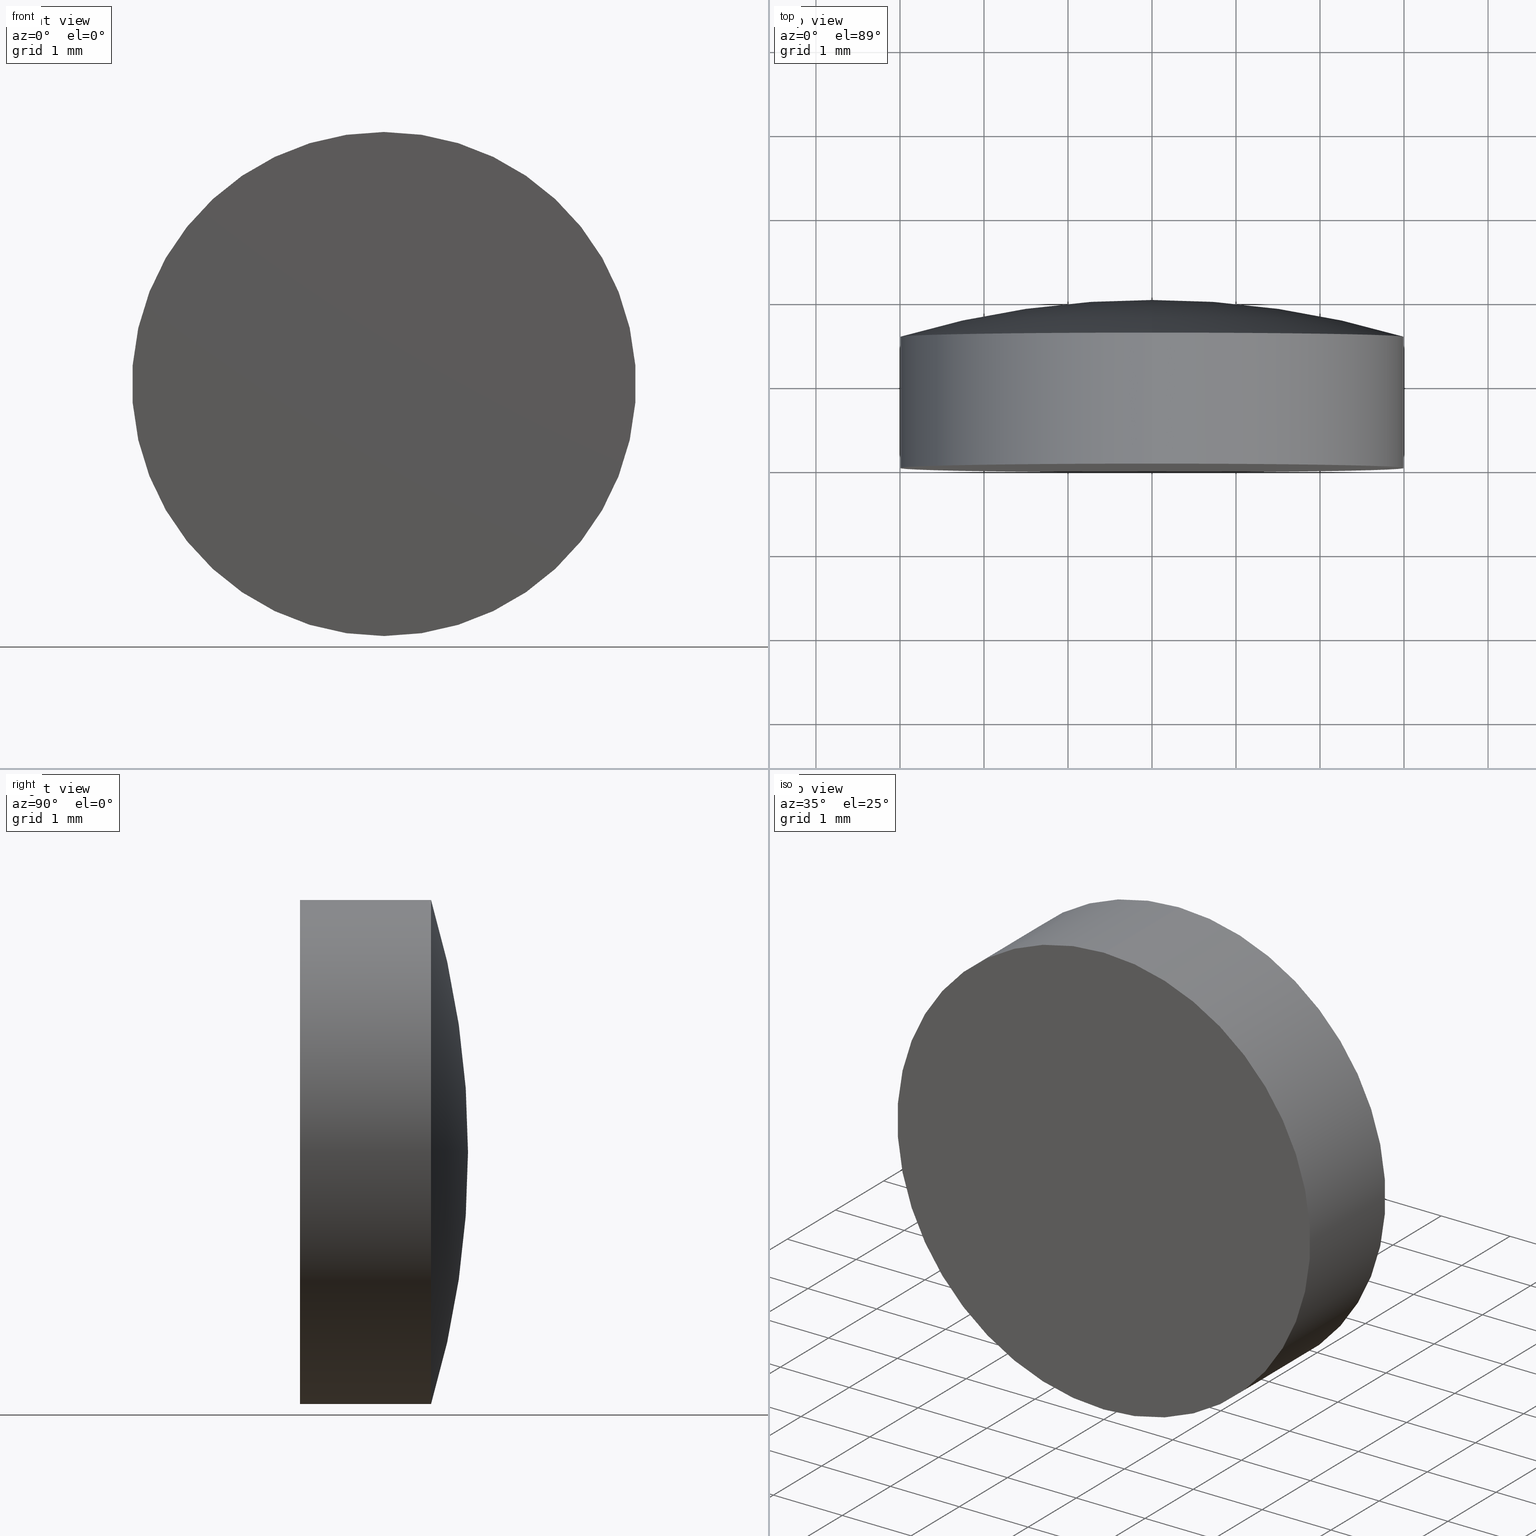
[diagram: canonical four-view strip — front | top / right | iso, engineering-drawing reading convention]
A machine part, canonical four-view strip (front | top / right | iso — engineering-drawing reading convention). The complete STEP part file that produces these views, byte-faithful:
ISO-10303-21;
HEADER;
FILE_DESCRIPTION (( 'STEP AP203' ),
    '1' );
FILE_NAME ('100563.STEP',
    '2024-05-09T05:52:02',
    ( '' ),
    ( '' ),
    'SwSTEP 2.0',
    'SolidWorks 2020',
    '' );
FILE_SCHEMA (( 'CONFIG_CONTROL_DESIGN' ));
ENDSEC;

DATA;
#1 = ORIENTED_EDGE ( 'NONE', *, *, #58, .T. ) ;
#2 = CC_DESIGN_DATE_AND_TIME_ASSIGNMENT ( #180, #30, ( #96 ) ) ;
#3 = ORIENTED_EDGE ( 'NONE', *, *, #53, .F. ) ;
#4 = APPLICATION_CONTEXT ( 'configuration controlled 3d designs of mechanical parts and assemblies' ) ;
#5 = CC_DESIGN_PERSON_AND_ORGANIZATION_ASSIGNMENT ( #64, #112, ( #125 ) ) ;
#6 = APPROVAL_PERSON_ORGANIZATION ( #26, #36, #80 ) ;
#7 = AXIS2_PLACEMENT_3D ( 'NONE', #103, #185, #21 ) ;
#8 = CC_DESIGN_DATE_AND_TIME_ASSIGNMENT ( #60, #128, ( #67 ) ) ;
#9 = UNCERTAINTY_MEASURE_WITH_UNIT (LENGTH_MEASURE( 1.000000000000000082E-05 ), #94, 'distance_accuracy_value', 'NONE');
#10 = DIRECTION ( 'NONE',  ( 0.000000000000000000, -1.000000000000000000, 0.000000000000000000 ) ) ;
#11 = DATE_AND_TIME ( #152, #108 ) ;
#12 = PERSON_AND_ORGANIZATION_ROLE ( 'creator' ) ;
#13 = PERSON_AND_ORGANIZATION_ROLE ( 'design_owner' ) ;
#14 = APPROVAL_STATUS ( 'not_yet_approved' ) ;
#15 = EDGE_LOOP ( 'NONE', ( #1, #113, #3 ) ) ;
#16 = EDGE_CURVE ( 'NONE', #29, #68, #102, .T. ) ;
#17 = AXIS2_PLACEMENT_3D ( 'NONE', #76, #127, #129 ) ;
#18 = ORIENTED_EDGE ( 'NONE', *, *, #51, .F. ) ;
#19 = EDGE_LOOP ( 'NONE', ( #145, #34, #32, #31 ) ) ;
#20 = APPROVAL ( #45, 'δָ��' ) ;
#21 = DIRECTION ( 'NONE',  ( 0.000000000000000000, 0.000000000000000000, 1.000000000000000000 ) ) ;
#22 = CARTESIAN_POINT ( 'NONE',  ( 0.000000000000000000, 1.559999999999999387, 2.999999999999999112 ) ) ;
#23 = AXIS2_PLACEMENT_3D ( 'NONE', #95, #176, #196 ) ;
#24 = AXIS2_PLACEMENT_3D ( 'NONE', #72, #149, #148 ) ;
#25 = APPROVAL_ROLE ( '' ) ;
#26 = PERSON_AND_ORGANIZATION ( #116, #65 ) ;
#27 = EDGE_CURVE ( 'NONE', #29, #86, #192, .T. ) ;
#28 = CALENDAR_DATE ( 2024, 9, 5 ) ;
#29 = VERTEX_POINT ( 'NONE', #190 ) ;
#30 = DATE_TIME_ROLE ( 'classification_date' ) ;
#31 = ORIENTED_EDGE ( 'NONE', *, *, #27, .F. ) ;
#32 = ORIENTED_EDGE ( 'NONE', *, *, #51, .T. ) ;
#33 = AXIS2_PLACEMENT_3D ( 'NONE', #92, #10, #124 ) ;
#34 = ORIENTED_EDGE ( 'NONE', *, *, #62, .T. ) ;
#35 = DIRECTION ( 'NONE',  ( -0.000000000000000000, 1.000000000000000000, -0.000000000000000000 ) ) ;
#36 = APPROVAL ( #14, 'δָ��' ) ;
#37 = CARTESIAN_POINT ( 'NONE',  ( 0.000000000000000000, 1.559999999999999609, 0.000000000000000000 ) ) ;
#38 = FACE_OUTER_BOUND ( 'NONE', #144, .T. ) ;
#39 =( NAMED_UNIT ( * ) PLANE_ANGLE_UNIT ( ) SI_UNIT ( $, .RADIAN. ) );
#40 = CARTESIAN_POINT ( 'NONE',  ( 3.673940397442059868E-16, -4.336808689942017736E-16, -3.000000000000000000 ) ) ;
#41 = APPROVAL ( #93, 'δָ��' ) ;
#42 = DIRECTION ( 'NONE',  ( 0.000000000000000000, 0.000000000000000000, 1.000000000000000000 ) ) ;
#43 = PERSON_AND_ORGANIZATION ( #116, #65 ) ;
#44 = ADVANCED_FACE ( 'NONE', ( #89 ), #119, .T. ) ;
#45 = APPROVAL_STATUS ( 'not_yet_approved' ) ;
#46 = COORDINATED_UNIVERSAL_TIME_OFFSET ( 8, 0, .AHEAD. ) ;
#47 = EDGE_LOOP ( 'NONE', ( #183, #69 ) ) ;
#48 = APPROVAL_ROLE ( '' ) ;
#49 = ORIENTED_EDGE ( 'NONE', *, *, #27, .T. ) ;
#50 = AXIS2_PLACEMENT_3D ( 'NONE', #179, #174, #151 ) ;
#51 = EDGE_CURVE ( 'NONE', #111, #86, #71, .T. ) ;
#52 = CIRCLE ( 'NONE', #81, 10.35999999999999766 ) ;
#53 = EDGE_CURVE ( 'NONE', #86, #68, #52, .T. ) ;
#54 = DIRECTION ( 'NONE',  ( -1.000000000000000000, 0.000000000000000000, 0.000000000000000000 ) ) ;
#55 = DIRECTION ( 'NONE',  ( -0.000000000000000000, 1.000000000000000000, -0.000000000000000000 ) ) ;
#56 = DESIGN_CONTEXT ( 'detailed design', #4, 'design' ) ;
#57 = DIRECTION ( 'NONE',  ( 0.000000000000000000, 0.000000000000000000, 1.000000000000000000 ) ) ;
#58 = EDGE_CURVE ( 'NONE', #86, #29, #59, .T. ) ;
#59 = CIRCLE ( 'NONE', #165, 3.000000000000000000 ) ;
#60 = DATE_AND_TIME ( #199, #136 ) ;
#61 = AXIS2_PLACEMENT_3D ( 'NONE', #106, #42, #107 ) ;
#62 = EDGE_CURVE ( 'NONE', #167, #111, #197, .T. ) ;
#63 = PERSON_AND_ORGANIZATION ( #116, #65 ) ;
#64 = PERSON_AND_ORGANIZATION ( #116, #65 ) ;
#65 = ORGANIZATION ( 'δָ��', 'δָ��', '' ) ;
#66 = DATE_AND_TIME ( #132, #186 ) ;
#67 = PRODUCT_DEFINITION ( 'δ֪', '', #125, #56 ) ;
#68 = VERTEX_POINT ( 'NONE', #122 ) ;
#69 = ORIENTED_EDGE ( 'NONE', *, *, #62, .F. ) ;
#70 = DIRECTION ( 'NONE',  ( 0.000000000000000000, 0.000000000000000000, 1.000000000000000000 ) ) ;
#71 = LINE ( 'NONE', #155, #143 ) ;
#72 = CARTESIAN_POINT ( 'NONE',  ( 0.000000000000000000, -8.359992091227860911, 0.000000000000000000 ) ) ;
#73 = AXIS2_PLACEMENT_3D ( 'NONE', #171, #35, #70 ) ;
#74 = CARTESIAN_POINT ( 'NONE',  ( 3.673940397442059868E-16, 2.000000000000000000, -3.000000000000000000 ) ) ;
#75 = FACE_OUTER_BOUND ( 'NONE', #135, .T. ) ;
#76 = CARTESIAN_POINT ( 'NONE',  ( 0.000000000000000000, 2.000000000000000000, 0.000000000000000000 ) ) ;
#77 =( NAMED_UNIT ( * ) SI_UNIT ( $, .STERADIAN. ) SOLID_ANGLE_UNIT ( ) );
#78 = ADVANCED_FACE ( 'NONE', ( #38 ), #156, .T. ) ;
#79 = PERSON_AND_ORGANIZATION ( #116, #65 ) ;
#80 = APPROVAL_ROLE ( '' ) ;
#81 = AXIS2_PLACEMENT_3D ( 'NONE', #90, #54, #173 ) ;
#82 = EDGE_CURVE ( 'NONE', #167, #29, #172, .T. ) ;
#83 = ORIENTED_EDGE ( 'NONE', *, *, #82, .T. ) ;
#84 =( GEOMETRIC_REPRESENTATION_CONTEXT ( 3 ) GLOBAL_UNCERTAINTY_ASSIGNED_CONTEXT ( ( #9 ) ) GLOBAL_UNIT_ASSIGNED_CONTEXT ( ( #94, #39, #77 ) ) REPRESENTATION_CONTEXT ( 'NONE', 'WORKASPACE' ) );
#85 = ORIENTED_EDGE ( 'NONE', *, *, #58, .F. ) ;
#86 = VERTEX_POINT ( 'NONE', #22 ) ;
#87 = DIRECTION ( 'NONE',  ( -0.000000000000000000, 1.000000000000000000, -0.000000000000000000 ) ) ;
#88 = LOCAL_TIME ( 13, 52, 2.000000000000000000, #159 ) ;
#89 = FACE_OUTER_BOUND ( 'NONE', #15, .T. ) ;
#90 = CARTESIAN_POINT ( 'NONE',  ( 0.000000000000000000, -8.359992091227860911, 0.01280115995324552884 ) ) ;
#91 = DIRECTION ( 'NONE',  ( 1.224646799147353207E-16, 0.000000000000000000, -1.000000000000000000 ) ) ;
#92 = CARTESIAN_POINT ( 'NONE',  ( 0.000000000000000000, -1.836970198721030181E-16, 0.000000000000000000 ) ) ;
#93 = APPROVAL_STATUS ( 'not_yet_approved' ) ;
#94 =( LENGTH_UNIT ( ) NAMED_UNIT ( * ) SI_UNIT ( .MILLI., .METRE. ) );
#95 = CARTESIAN_POINT ( 'NONE',  ( 0.000000000000000000, -4.336808689942017736E-16, 0.000000000000000000 ) ) ;
#96 = SECURITY_CLASSIFICATION ( '', '', #162 ) ;
#97 = MANIFOLD_SOLID_BREP ( '��ת1', #158 ) ;
#98 = APPROVAL_DATE_TIME ( #195, #36 ) ;
#99 = PERSON_AND_ORGANIZATION ( #116, #65 ) ;
#100 = ORIENTED_EDGE ( 'NONE', *, *, #16, .F. ) ;
#101 = ADVANCED_FACE ( 'NONE', ( #104 ), #157, .T. ) ;
#102 = CIRCLE ( 'NONE', #160, 10.35999999999999766 ) ;
#103 = CARTESIAN_POINT ( 'NONE',  ( 0.000000000000000000, 2.000000000000000000, 0.000000000000000000 ) ) ;
#104 = FACE_OUTER_BOUND ( 'NONE', #47, .T. ) ;
#105 = DIRECTION ( 'NONE',  ( -0.000000000000000000, 1.000000000000000000, -0.000000000000000000 ) ) ;
#106 = CARTESIAN_POINT ( 'NONE',  ( 0.000000000000000000, 0.000000000000000000, 0.000000000000000000 ) ) ;
#107 = DIRECTION ( 'NONE',  ( 1.000000000000000000, 0.000000000000000000, 0.000000000000000000 ) ) ;
#108 = LOCAL_TIME ( 13, 52, 2.000000000000000000, #150 ) ;
#109 = CALENDAR_DATE ( 2024, 9, 5 ) ;
#110 = PERSON_AND_ORGANIZATION ( #116, #65 ) ;
#111 = VERTEX_POINT ( 'NONE', #139 ) ;
#112 = PERSON_AND_ORGANIZATION_ROLE ( 'design_supplier' ) ;
#113 = ORIENTED_EDGE ( 'NONE', *, *, #16, .T. ) ;
#114 = EDGE_CURVE ( 'NONE', #111, #167, #117, .T. ) ;
#115 = ORIENTED_EDGE ( 'NONE', *, *, #53, .T. ) ;
#116 = PERSON ( 'δָ��', 'δָ��', 'δָ��', ('δָ��'), ('δָ��'), ('δָ��') ) ;
#117 = CIRCLE ( 'NONE', #23, 3.000000000000000000 ) ;
#118 = DIRECTION ( 'NONE',  ( 1.000000000000000000, 0.000000000000000000, 1.224646799147353207E-16 ) ) ;
#119 = TOROIDAL_SURFACE ( 'NONE', #24, 0.01280115995324552884, 10.35999999999999766 ) ;
#120 = DIRECTION ( 'NONE',  ( 0.000000000000000000, 0.000000000000000000, 1.000000000000000000 ) ) ;
#121 = CC_DESIGN_APPROVAL ( #36, ( #125 ) ) ;
#122 = CARTESIAN_POINT ( 'NONE',  ( 0.000000000000000000, 2.000000000000000000, 0.000000000000000000 ) ) ;
#123 = PRODUCT ( '100563', '100563', '', ( #153 ) ) ;
#124 = DIRECTION ( 'NONE',  ( 0.000000000000000000, -0.000000000000000000, -1.000000000000000000 ) ) ;
#125 = PRODUCT_DEFINITION_FORMATION_WITH_SPECIFIED_SOURCE ( '�κ�', '', #123, .NOT_KNOWN. ) ;
#126 = FACE_OUTER_BOUND ( 'NONE', #19, .T. ) ;
#127 = DIRECTION ( 'NONE',  ( -0.000000000000000000, 1.000000000000000000, -0.000000000000000000 ) ) ;
#128 = DATE_TIME_ROLE ( 'creation_date' ) ;
#129 = DIRECTION ( 'NONE',  ( 0.000000000000000000, 0.000000000000000000, 1.000000000000000000 ) ) ;
#130 = PERSON_AND_ORGANIZATION_ROLE ( 'classification_officer' ) ;
#131 = CC_DESIGN_SECURITY_CLASSIFICATION ( #96, ( #125 ) ) ;
#132 = CALENDAR_DATE ( 2024, 9, 5 ) ;
#133 = ADVANCED_FACE ( 'NONE', ( #75 ), #142, .T. ) ;
#134 = ORIENTED_EDGE ( 'NONE', *, *, #114, .T. ) ;
#135 = EDGE_LOOP ( 'NONE', ( #100, #49, #115 ) ) ;
#136 = LOCAL_TIME ( 13, 52, 2.000000000000000000, #138 ) ;
#137 = CARTESIAN_POINT ( 'NONE',  ( 0.000000000000000000, 1.559999999999999609, 0.000000000000000000 ) ) ;
#138 = COORDINATED_UNIVERSAL_TIME_OFFSET ( 8, 0, .AHEAD. ) ;
#139 = CARTESIAN_POINT ( 'NONE',  ( 0.000000000000000000, -4.336808689942017736E-16, 3.000000000000000000 ) ) ;
#140 = PERSON_AND_ORGANIZATION_ROLE ( 'creator' ) ;
#141 = ADVANCED_FACE ( 'NONE', ( #126 ), #178, .T. ) ;
#142 = TOROIDAL_SURFACE ( 'NONE', #50, 0.01280115995324552884, 10.35999999999999766 ) ;
#143 = VECTOR ( 'NONE', #188, 1000.000000000000000 ) ;
#144 = EDGE_LOOP ( 'NONE', ( #134, #83, #85, #18 ) ) ;
#145 = ORIENTED_EDGE ( 'NONE', *, *, #82, .F. ) ;
#146 = LOCAL_TIME ( 13, 52, 2.000000000000000000, #46 ) ;
#147 = PRODUCT_RELATED_PRODUCT_CATEGORY ( 'detail', '', ( #123 ) ) ;
#148 = DIRECTION ( 'NONE',  ( 0.000000000000000000, 0.000000000000000000, 1.000000000000000000 ) ) ;
#149 = DIRECTION ( 'NONE',  ( -0.000000000000000000, 1.000000000000000000, -0.000000000000000000 ) ) ;
#150 = COORDINATED_UNIVERSAL_TIME_OFFSET ( 8, 0, .AHEAD. ) ;
#151 = DIRECTION ( 'NONE',  ( 0.000000000000000000, 0.000000000000000000, 1.000000000000000000 ) ) ;
#152 = CALENDAR_DATE ( 2024, 9, 5 ) ;
#153 = MECHANICAL_CONTEXT ( 'NONE', #191, 'mechanical' ) ;
#154 = APPLICATION_PROTOCOL_DEFINITION ( 'international standard', 'config_control_design', 1994, #4 ) ;
#155 = CARTESIAN_POINT ( 'NONE',  ( 0.000000000000000000, 2.000000000000000000, 3.000000000000000000 ) ) ;
#156 = CYLINDRICAL_SURFACE ( 'NONE', #7, 3.000000000000000000 ) ;
#157 = PLANE ( 'NONE',  #33 ) ;
#158 = CLOSED_SHELL ( 'NONE', ( #78, #44, #133, #101, #141 ) ) ;
#159 = COORDINATED_UNIVERSAL_TIME_OFFSET ( 8, 0, .AHEAD. ) ;
#160 = AXIS2_PLACEMENT_3D ( 'NONE', #169, #118, #91 ) ;
#161 = APPROVAL_DATE_TIME ( #11, #41 ) ;
#162 = SECURITY_CLASSIFICATION_LEVEL ( 'unclassified' ) ;
#163 = SHAPE_DEFINITION_REPRESENTATION ( #166, #193 ) ;
#164 = PERSON_AND_ORGANIZATION ( #116, #65 ) ;
#165 = AXIS2_PLACEMENT_3D ( 'NONE', #37, #55, #57 ) ;
#166 = PRODUCT_DEFINITION_SHAPE ( 'NONE', 'NONE',  #67 ) ;
#167 = VERTEX_POINT ( 'NONE', #40 ) ;
#168 = CC_DESIGN_APPROVAL ( #41, ( #67 ) ) ;
#169 = CARTESIAN_POINT ( 'NONE',  ( 1.567689956211541805E-18, -8.359992091227860911, -0.01280115995324552884 ) ) ;
#170 = APPROVAL_PERSON_ORGANIZATION ( #43, #41, #25 ) ;
#171 = CARTESIAN_POINT ( 'NONE',  ( 0.000000000000000000, -4.336808689942017736E-16, 0.000000000000000000 ) ) ;
#172 = LINE ( 'NONE', #74, #184 ) ;
#173 = DIRECTION ( 'NONE',  ( 0.000000000000000000, 0.000000000000000000, 1.000000000000000000 ) ) ;
#174 = DIRECTION ( 'NONE',  ( -0.000000000000000000, 1.000000000000000000, -0.000000000000000000 ) ) ;
#175 = CC_DESIGN_PERSON_AND_ORGANIZATION_ASSIGNMENT ( #63, #13, ( #123 ) ) ;
#176 = DIRECTION ( 'NONE',  ( -0.000000000000000000, 1.000000000000000000, -0.000000000000000000 ) ) ;
#177 = CC_DESIGN_PERSON_AND_ORGANIZATION_ASSIGNMENT ( #164, #130, ( #96 ) ) ;
#178 = CYLINDRICAL_SURFACE ( 'NONE', #17, 3.000000000000000000 ) ;
#179 = CARTESIAN_POINT ( 'NONE',  ( 0.000000000000000000, -8.359992091227860911, 0.000000000000000000 ) ) ;
#180 = DATE_AND_TIME ( #28, #146 ) ;
#181 = CC_DESIGN_APPROVAL ( #20, ( #96 ) ) ;
#182 = APPROVAL_DATE_TIME ( #66, #20 ) ;
#183 = ORIENTED_EDGE ( 'NONE', *, *, #114, .F. ) ;
#184 = VECTOR ( 'NONE', #105, 1000.000000000000000 ) ;
#185 = DIRECTION ( 'NONE',  ( -0.000000000000000000, 1.000000000000000000, -0.000000000000000000 ) ) ;
#186 = LOCAL_TIME ( 13, 52, 2.000000000000000000, #201 ) ;
#187 = CC_DESIGN_PERSON_AND_ORGANIZATION_ASSIGNMENT ( #79, #140, ( #125 ) ) ;
#188 = DIRECTION ( 'NONE',  ( -0.000000000000000000, 1.000000000000000000, -0.000000000000000000 ) ) ;
#189 = APPROVAL_PERSON_ORGANIZATION ( #110, #20, #48 ) ;
#190 = CARTESIAN_POINT ( 'NONE',  ( 3.673940397442058882E-16, 1.559999999999999387, -2.999999999999999112 ) ) ;
#191 = APPLICATION_CONTEXT ( 'configuration controlled 3d designs of mechanical parts and assemblies' ) ;
#192 = CIRCLE ( 'NONE', #200, 3.000000000000000000 ) ;
#193 = ADVANCED_BREP_SHAPE_REPRESENTATION ( '100563', ( #97, #61 ), #84 ) ;
#194 = CC_DESIGN_PERSON_AND_ORGANIZATION_ASSIGNMENT ( #99, #12, ( #67 ) ) ;
#195 = DATE_AND_TIME ( #109, #88 ) ;
#196 = DIRECTION ( 'NONE',  ( 0.000000000000000000, 0.000000000000000000, 1.000000000000000000 ) ) ;
#197 = CIRCLE ( 'NONE', #73, 3.000000000000000000 ) ;
#198 = APPLICATION_PROTOCOL_DEFINITION ( 'international standard', 'config_control_design', 1994, #191 ) ;
#199 = CALENDAR_DATE ( 2024, 9, 5 ) ;
#200 = AXIS2_PLACEMENT_3D ( 'NONE', #137, #87, #120 ) ;
#201 = COORDINATED_UNIVERSAL_TIME_OFFSET ( 8, 0, .AHEAD. ) ;
ENDSEC;
END-ISO-10303-21;
